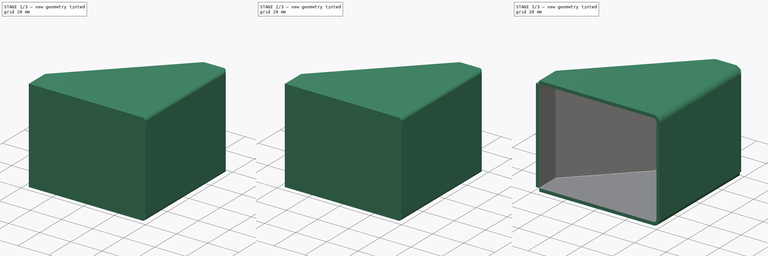
[diagram: build sequence overview — one tinted view per stage of 3, left to right]
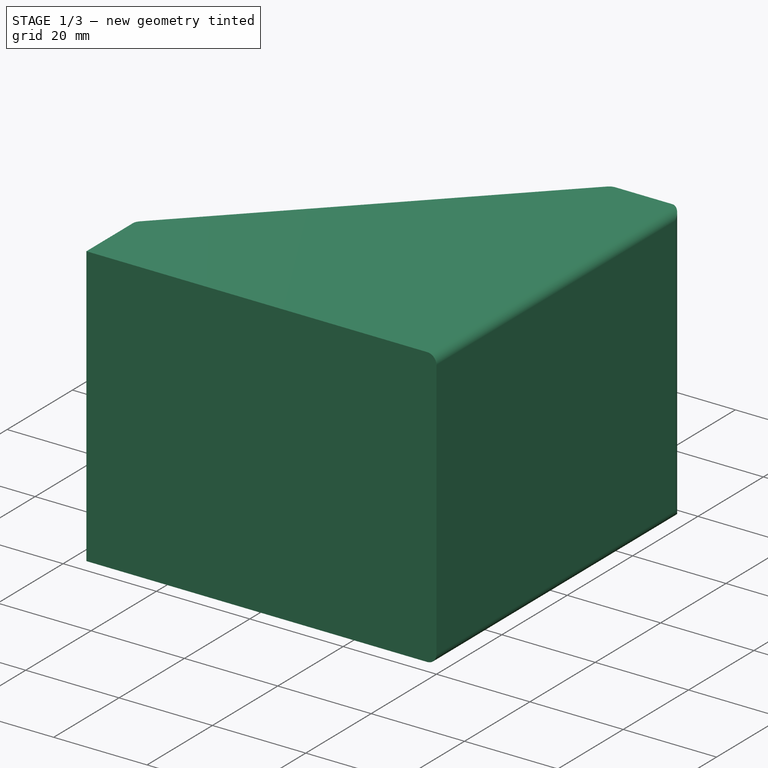
[diagram: stage 1 of 3 — iso view after this stage's code; geometry added in this stage tinted green]
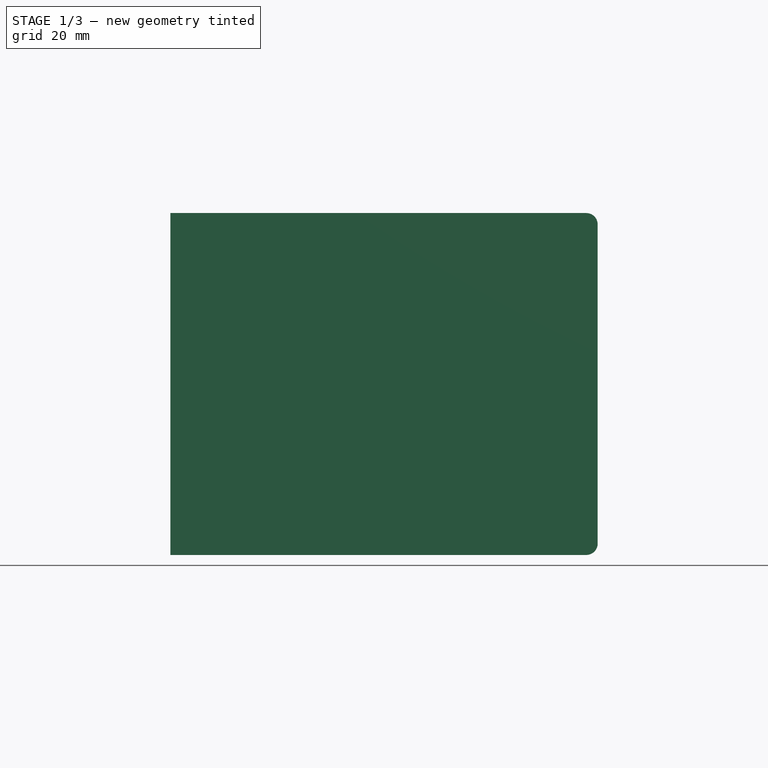
[diagram: stage 1 of 3 — front view after this stage's code; geometry added in this stage tinted green]
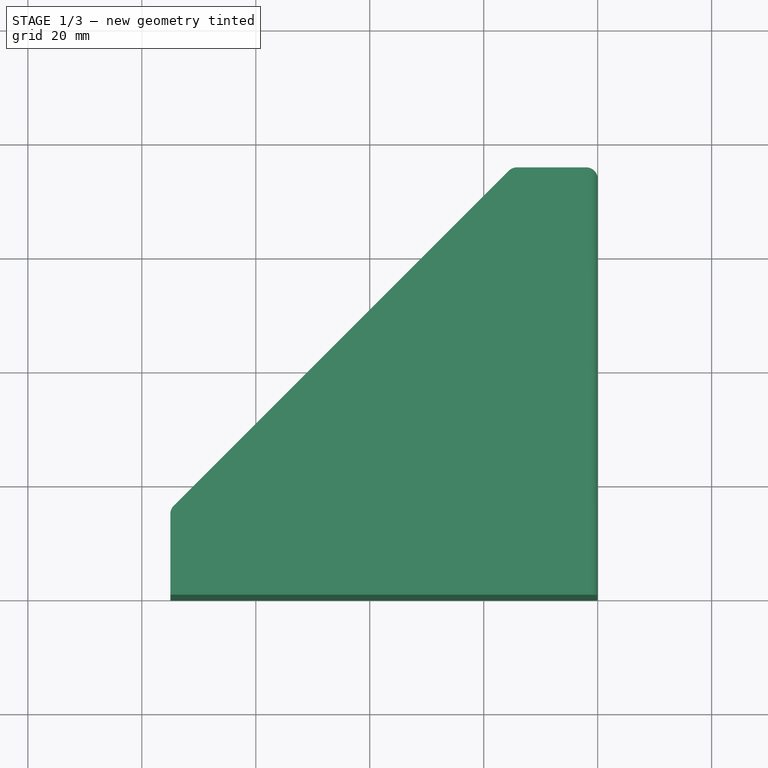
[diagram: stage 1 of 3 — top view after this stage's code; geometry added in this stage tinted green]
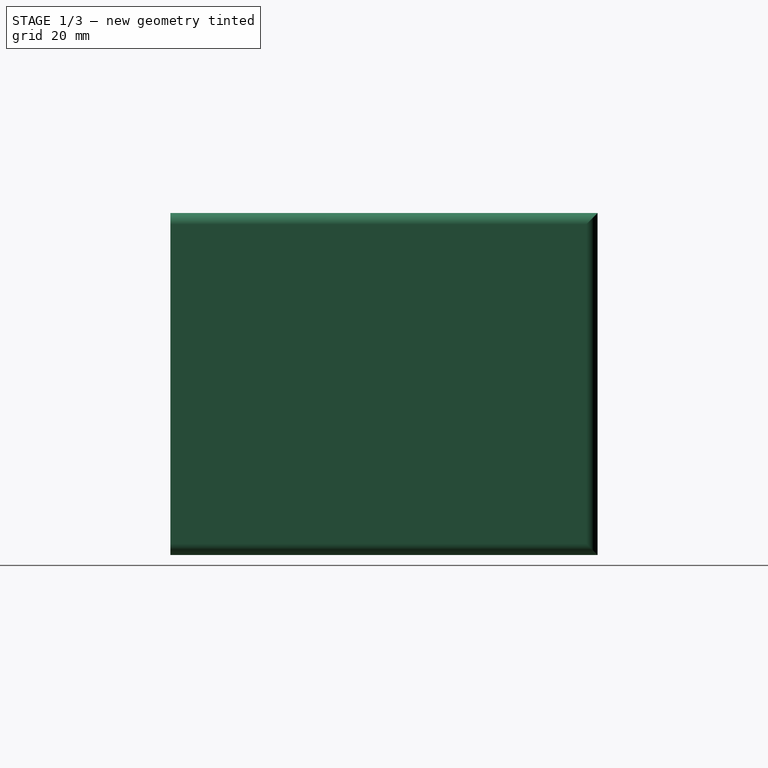
[diagram: stage 1 of 3 — right view after this stage's code; geometry added in this stage tinted green]
FCSTD DOCUMENT  (FreeCAD 0.19R20996 (Git))
Label: Parametric-Sheetmetal-From-Facebinder
License: All rights reserved
LicenseURL: www.visualprojections.com.au
objects: PartDesign::Fillet×3, Sketcher::SketchObject×1, PartDesign::Pad×1, PartDesign::Body×1, Part::FeaturePython×1, Part::Offset×1
note: 12 computed .brp shape members not serialized (recipe doc carries the construction recipe); baked Part::Feature solids carry a one-line shape summary decoded from their .brp

FEATURE [Sketcher::SketchObject] Sketch
  MapMode = 5
  Support = -> [XY_Plane]
  sketch-geometry (5):
    g0: LineSegment StartX=-15 StartY=75 StartZ=0 EndX=0 EndY=75 EndZ=0
    g1: LineSegment StartX=0 StartY=75 StartZ=0 EndX=0 EndY=0 EndZ=0
    g2: LineSegment StartX=0 StartY=0 StartZ=0 EndX=-75 EndY=0 EndZ=0
    g3: LineSegment StartX=-75 StartY=0 StartZ=0 EndX=-75 EndY=15 EndZ=0
    g4: LineSegment StartX=-15 StartY=75 StartZ=0 EndX=-75 EndY=15 EndZ=0
  constraints (14):
    c: Coincident(g0,g1)
    c: Coincident(g1,g2)
    c: Coincident(g2,g3)
    c: Horizontal(g0)
    c: Horizontal(g2)
    c: Vertical(g1)
    c: Vertical(g3)
    c: Coincident(g3,g4)
    c: Coincident(g0,g4)
    c: Angle(g3,g4) = 2.35619
    c: DistanceX(g0,g0) = 15
    c: Equal(g3,g0)
    c: Coincident(g1,g-1)
    c: DistanceX(g2,g2) = 75
FEATURE [PartDesign::Pad] Pad
  Length = 60
  Length2 = 100
  Profile = -> Sketch
  Type = 0
FEATURE [PartDesign::Fillet] Fillet
  Base = -> Pad [Edge11,Edge1,Edge2,Edge6,Edge7]
  BaseFeature = -> Pad
  Radius = 2
  SupportTransform = true
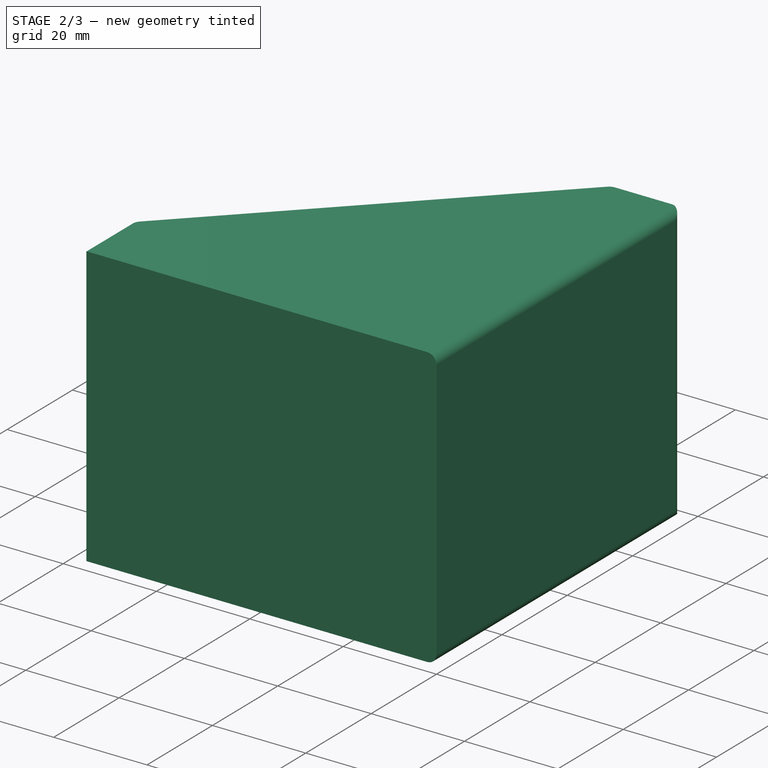
[diagram: stage 2 of 3 — iso view after this stage's code; geometry added in this stage tinted green]
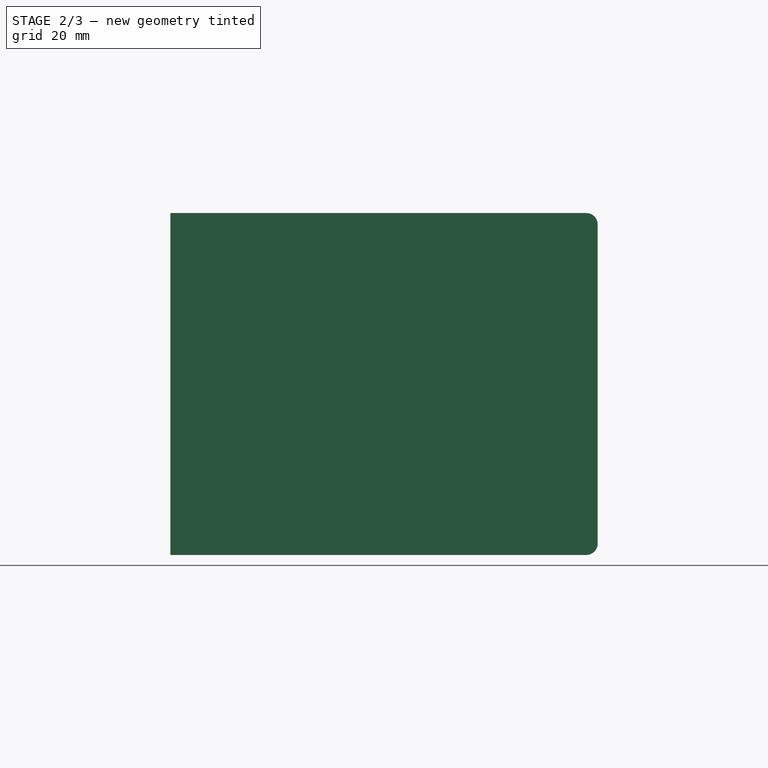
[diagram: stage 2 of 3 — front view after this stage's code; geometry added in this stage tinted green]
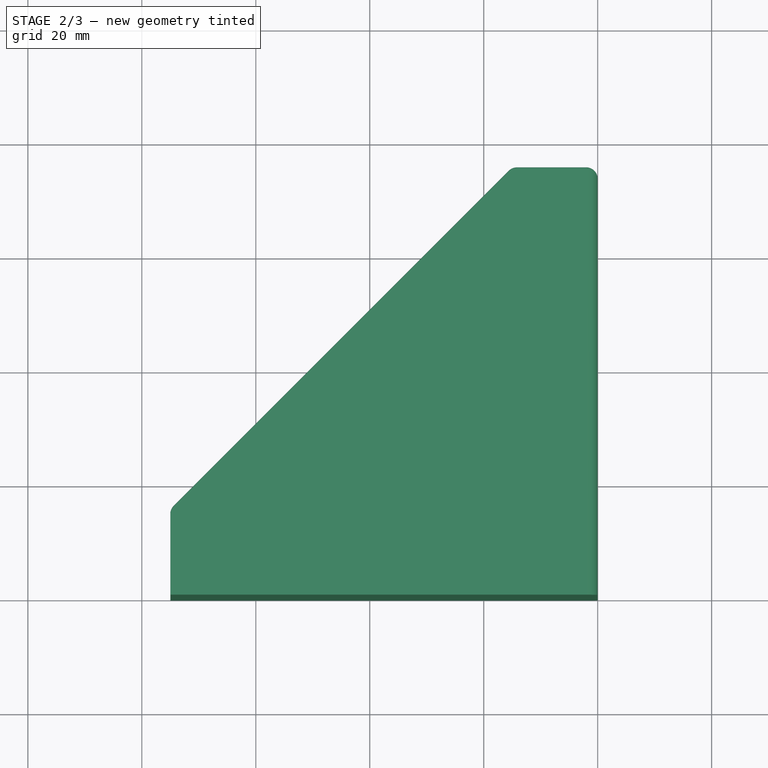
[diagram: stage 2 of 3 — top view after this stage's code; geometry added in this stage tinted green]
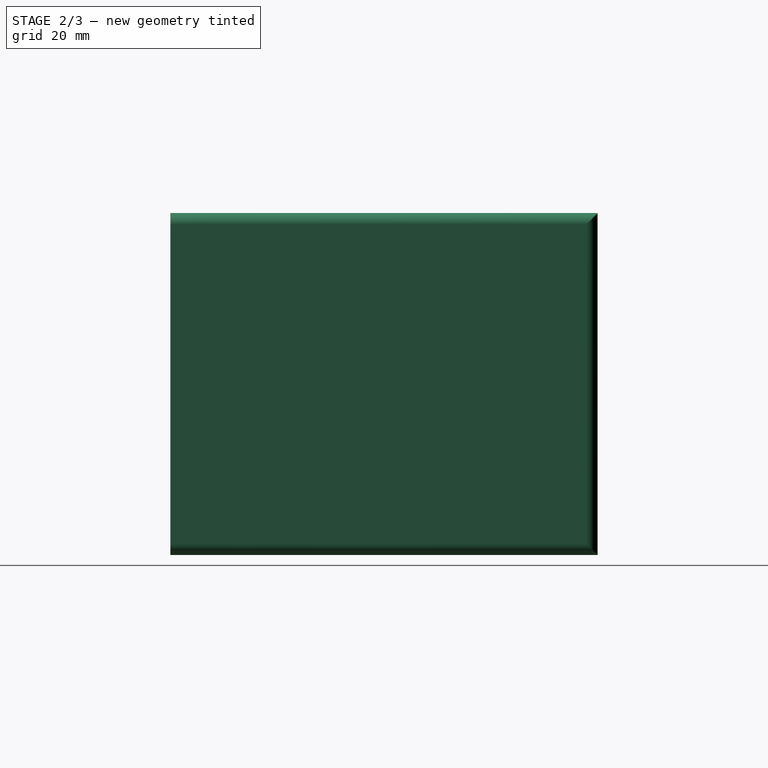
[diagram: stage 2 of 3 — right view after this stage's code; geometry added in this stage tinted green]
FEATURE [PartDesign::Fillet] Fillet001
  Base = -> Fillet [Edge4,Edge15,Edge12,Edge17,Edge19,Edge20]
  BaseFeature = -> Fillet
  Radius = 0.1
  SupportTransform = true
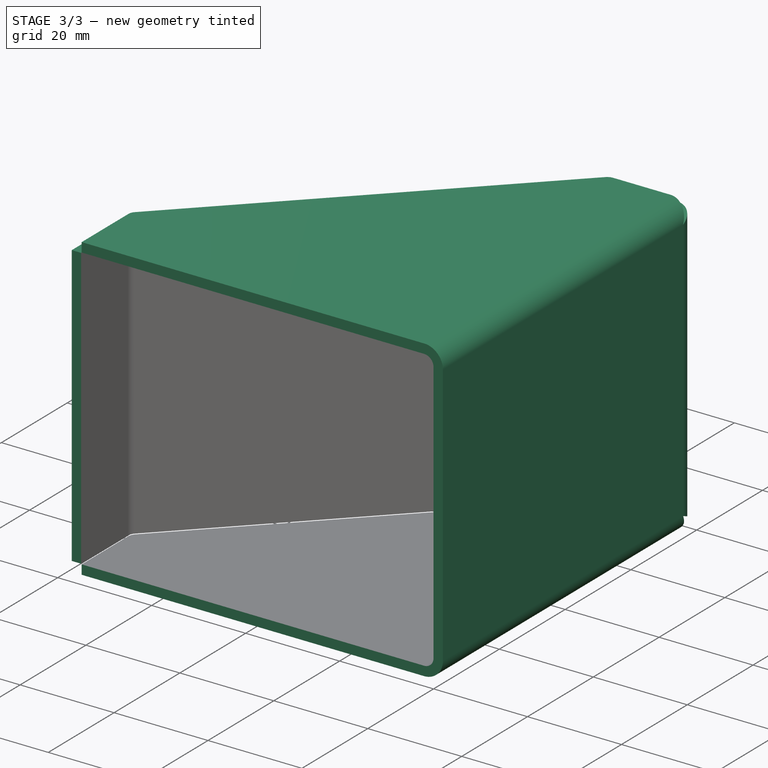
[diagram: stage 3 of 3 — iso view after this stage's code; geometry added in this stage tinted green]
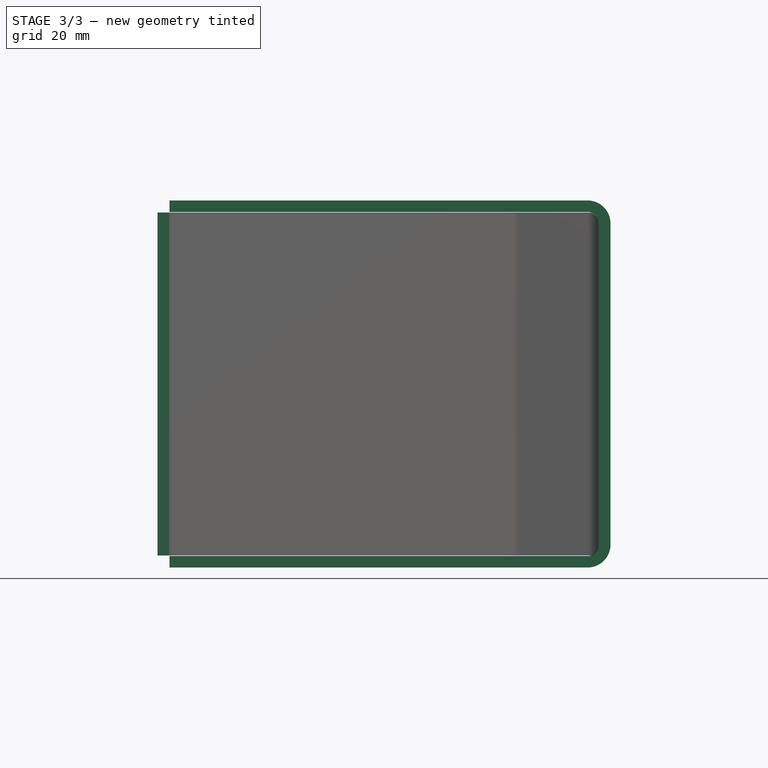
[diagram: stage 3 of 3 — front view after this stage's code; geometry added in this stage tinted green]
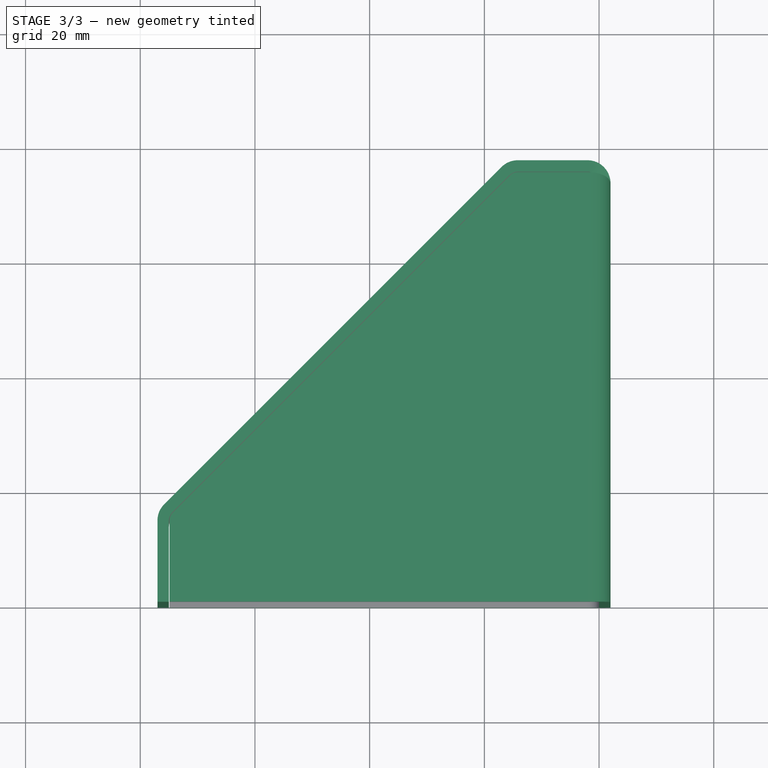
[diagram: stage 3 of 3 — top view after this stage's code; geometry added in this stage tinted green]
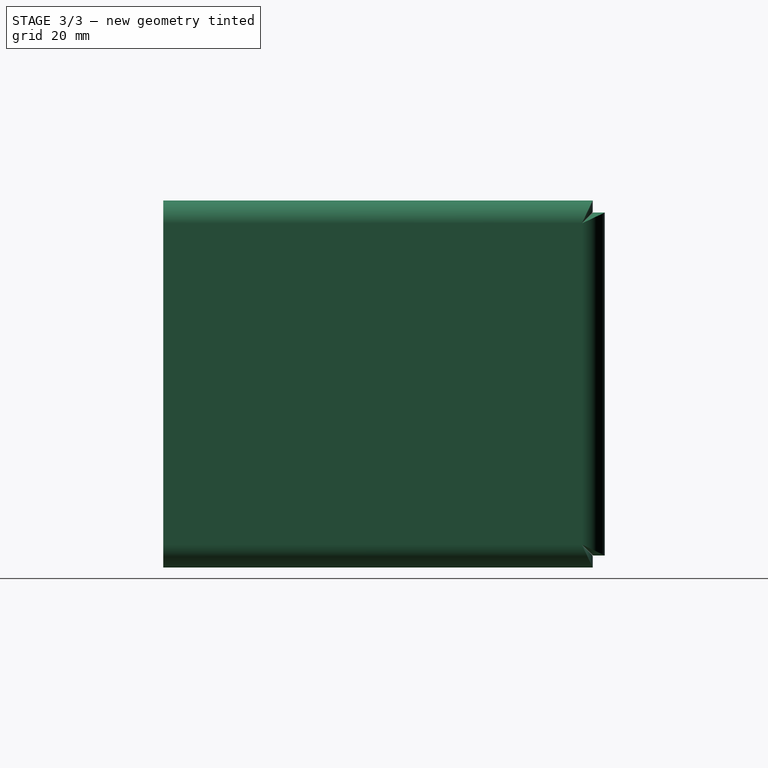
[diagram: stage 3 of 3 — right view after this stage's code; geometry added in this stage tinted green]
FEATURE [PartDesign::Fillet] Fillet002
  Base = -> Fillet001 [Edge17,Edge3,Edge6,Edge12,Edge14,Edge15]
  BaseFeature = -> Fillet001
  Radius = 0.1
  SupportTransform = true
FEATURE [PartDesign::Body] Body
  Group = -> [Sketch,Pad,Fillet,Fillet001,Fillet002]
  Origin = -> Origin
  Tip = -> Fillet002
FEATURE [Part::FeaturePython] Facebinder  # WARN: FeaturePython — macro-defined, semantics opaque (R4)
  Extrusion = 0
  Faces = -> [Fillet002]
  RemoveSplitter = false
  Sew = false
FEATURE [Part::Offset] Offset
  Fill = true
  Intersection = false
  Join = 0
  Mode = 0
  SelfIntersection = false
  Source = -> Facebinder
  Value = 2
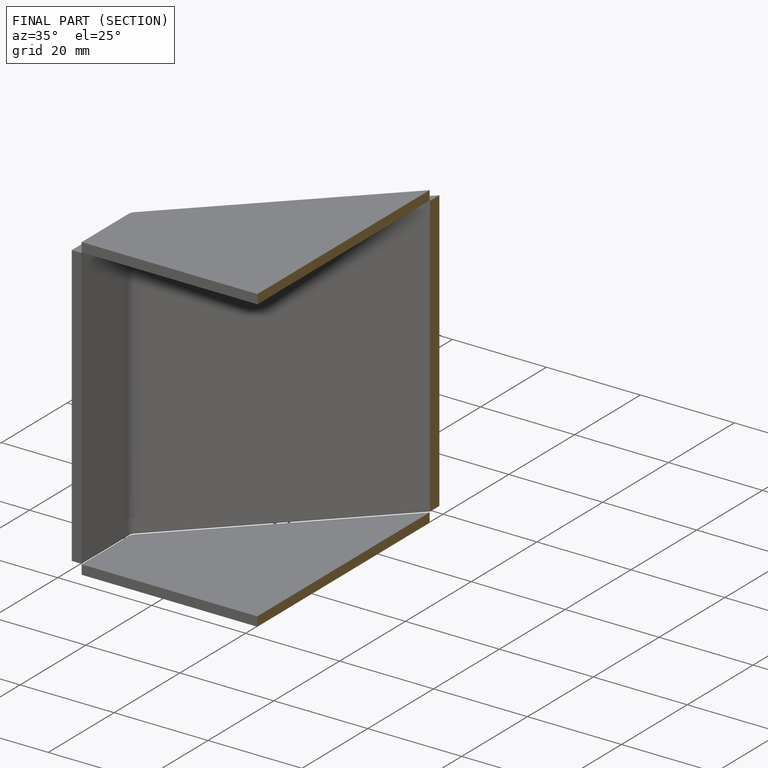
[diagram: finished part — half-section view (interior)]
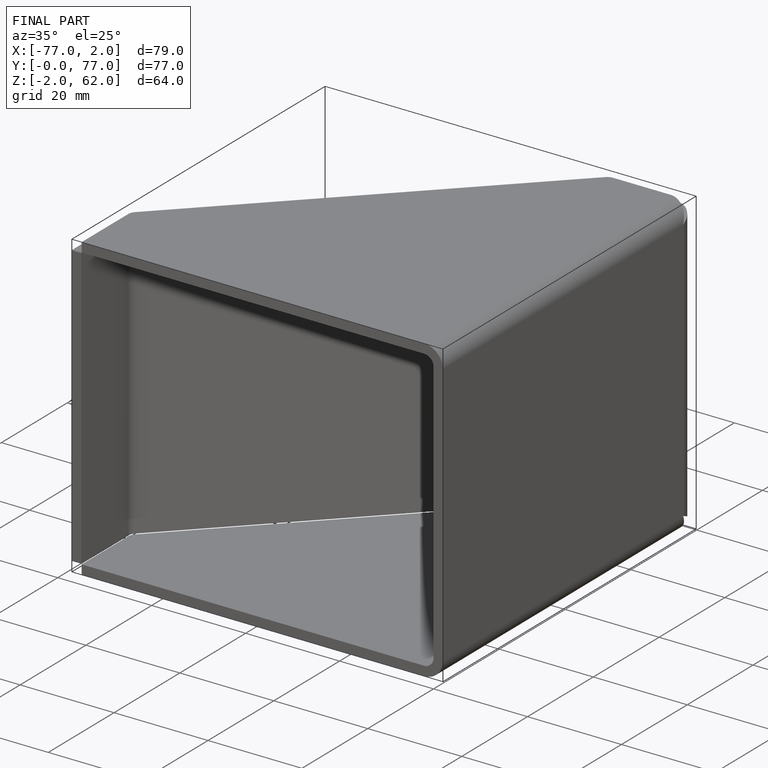
[diagram: finished part — iso view with bounding-box wireframe]
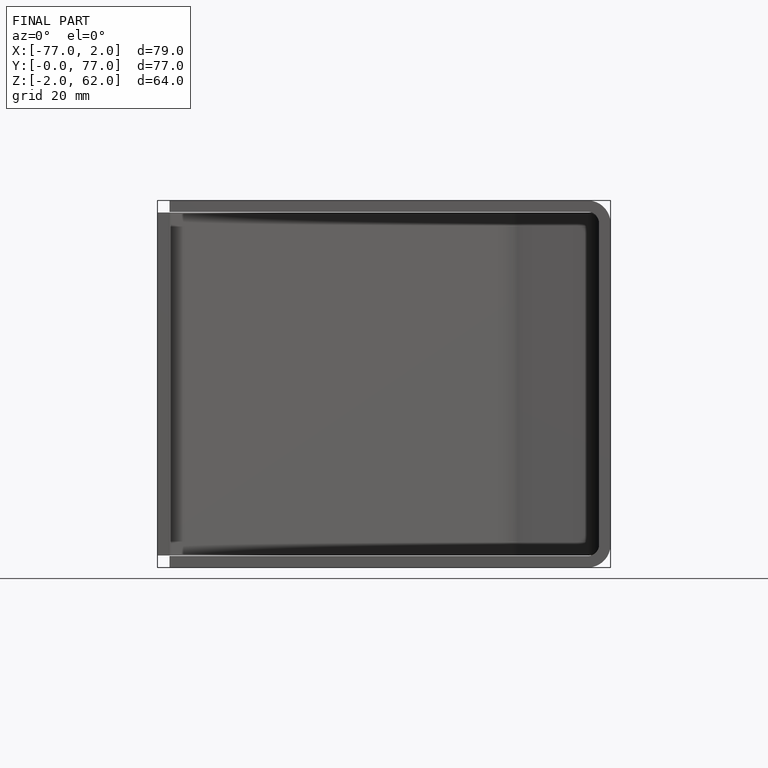
[diagram: finished part — front view with bounding-box wireframe]
